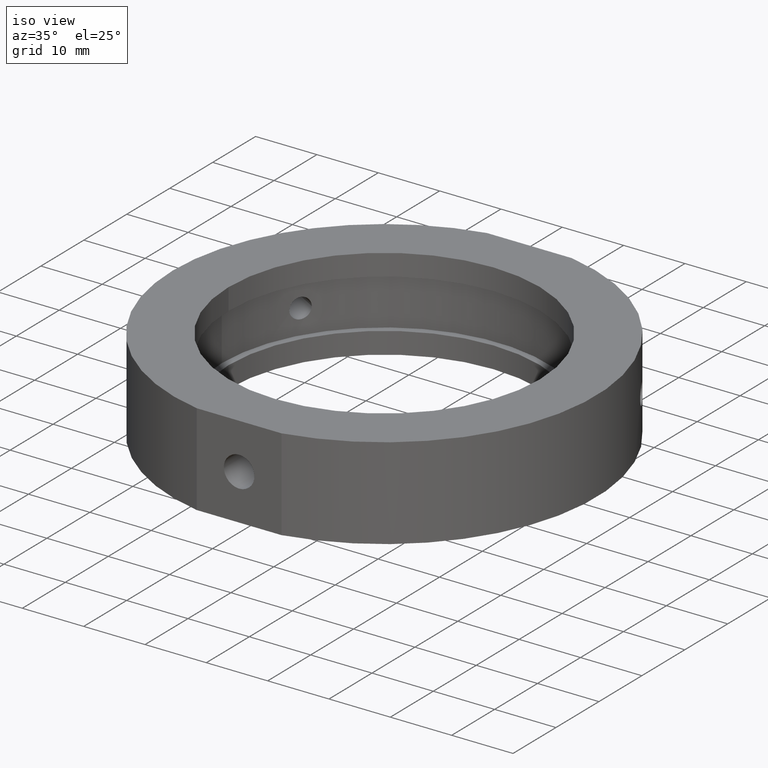
[diagram: clean part render]
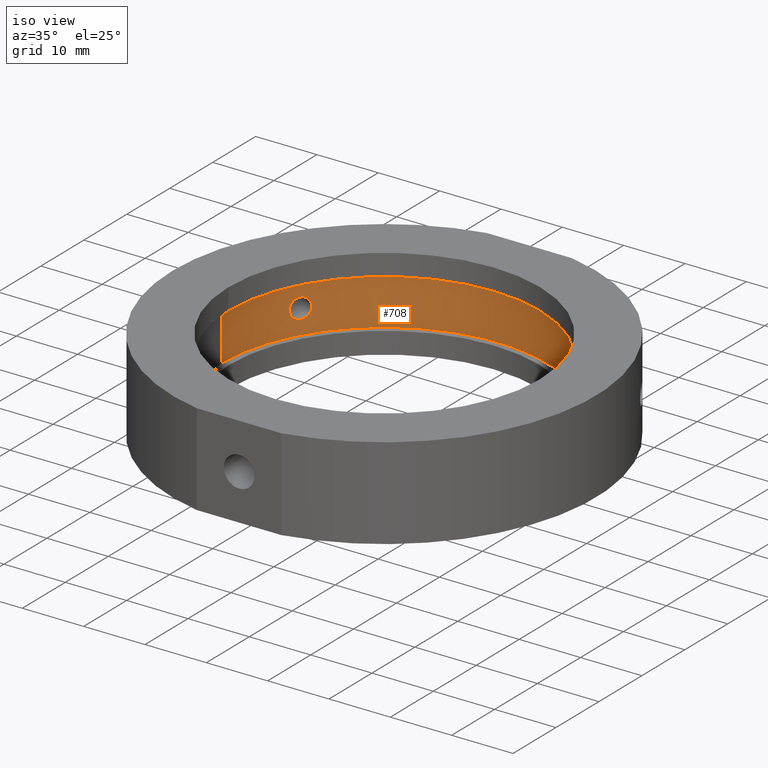
[diagram: same view with one face highlighted and labeled with its STEP entity id]
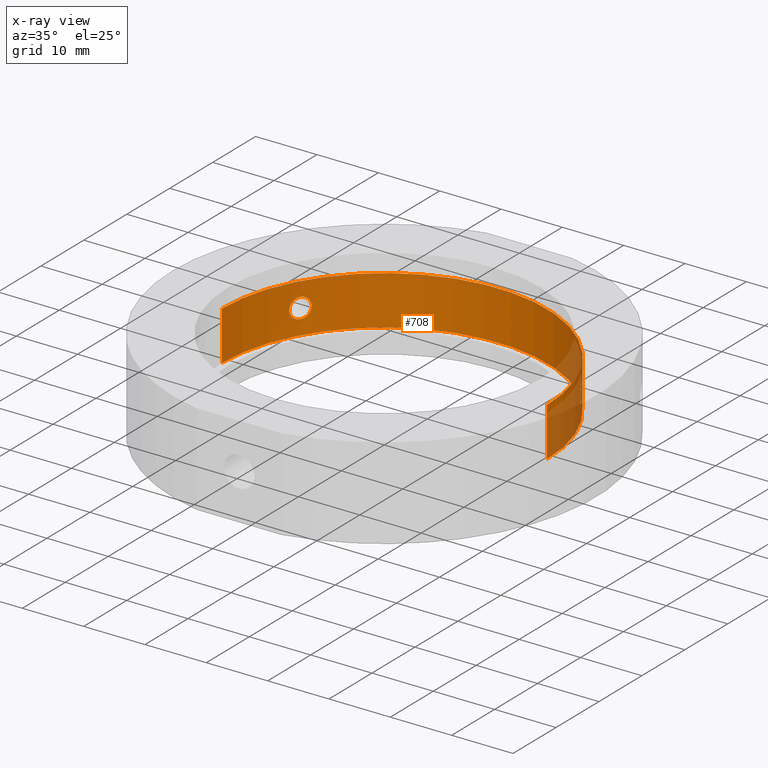
[diagram: x-ray of the same camera — body ghosted, the highlighted face saturated]
A machine part, iso view. The second image highlights one B-rep face of the part: STEP entity #708.
The next image is the same camera in x-ray: the body ghosted, the highlighted face saturated — about 11% of this face is hidden behind the body in this view.
In plain terms, the highlighted cylindrical surface (partial cylindrical patch) has radius 26.5 mm, axis along (-0, -0, -1).
Its self-contained STEP definition (entity closure, byte-faithful):
#12 = DIRECTION ( 'NONE',  ( -1.000000000000000000, 0.0000000000000000000, 0.0000000000000000000 ) ) ;
#21 = CARTESIAN_POINT ( 'NONE',  ( 0.0000000000000000000, 0.0000000000000000000, -31.93906810035839800 ) ) ;
#23 = CARTESIAN_POINT ( 'NONE',  ( 23.21176236929870400, 12.78569701331146800, -1.565225519695946800 ) ) ;
#25 = CARTESIAN_POINT ( 'NONE',  ( 22.26251392646612400, 14.37545578161552500, -1.015413393939631900 ) ) ;
#33 = CARTESIAN_POINT ( 'NONE',  ( -22.10946025722504200, 14.60897716588688900, 0.4285652912980788500 ) ) ;
#34 = CARTESIAN_POINT ( 'NONE',  ( -22.52491568547261000, 13.96016563751797100, -1.431623242074237400 ) ) ;
#45 = CARTESIAN_POINT ( 'NONE',  ( -22.89456247127684900, 13.34544347229920000, -1.649910780175093800 ) ) ;
#47 = CARTESIAN_POINT ( 'NONE',  ( -26.50000000000000000, 0.0000000000000000000, -31.93906810035839800 ) ) ;
#61 = EDGE_CURVE ( 'NONE', #70, #908, #259, .T. ) ;
#68 = ORIENTED_EDGE ( 'NONE', *, *, #76, .F. ) ;
#70 = VERTEX_POINT ( 'NONE', #869 ) ;
#76 = EDGE_CURVE ( 'NONE', #979, #519, #255, .T. ) ;
#86 = B_SPLINE_CURVE_WITH_KNOTS ( 'NONE', 3,
 ( #461, #280, #110, #900, #212, #1074, #644, #198, #386, #209, #824, #909, #293, #915, #724, #204, #997, #374, #119, #989, #471, #382, #465, #553, #564, #993, #33, #637, #735, #738 ),
 .UNSPECIFIED., .F., .F.,
 ( 4, 2, 2, 2, 2, 2, 2, 2, 2, 2, 2, 2, 2, 2, 4 ),
 ( 0.0000000000000000000, 0.0003224937488851672900, 0.0006449874977703344700, 0.0009674812466555015400, 0.001289974995540668500, 0.001934962493311006100, 0.002579949991081343500, 0.002902443739966514100, 0.003224937488851685000, 0.003547431237736855600, 0.003869924986622026500, 0.004192418735507196700, 0.004514912484392367600, 0.004837406233277538600, 0.005159899982162708700 ),
 .UNSPECIFIED. ) ;
#101 = CARTESIAN_POINT ( 'NONE',  ( -22.08014407289325500, 14.65323301255653400, -0.2153518926507562700 ) ) ;
#108 = CARTESIAN_POINT ( 'NONE',  ( 22.38549137300061900, 14.18258050578720600, -1.243615211085979300 ) ) ;
#110 = CARTESIAN_POINT ( 'NONE',  ( -23.72537572262025000, 11.80495608265282400, 0.2162676873792887000 ) ) ;
#117 = CARTESIAN_POINT ( 'NONE',  ( -26.49999999999999600, 0.0000000000000000000, 4.000000000000000000 ) ) ;
#119 = CARTESIAN_POINT ( 'NONE',  ( -22.52495430556246300, 13.96010149608200400, 1.431639342594714500 ) ) ;
#129 = CARTESIAN_POINT ( 'NONE',  ( -23.58076686109186300, 12.09217472161696300, -1.015413393939629900 ) ) ;
#131 = CARTESIAN_POINT ( 'NONE',  ( -23.71067269066712100, 11.83472949812866500, -0.4346623414733967700 ) ) ;
#144 = DIRECTION ( 'NONE',  ( -1.000000000000000000, 0.0000000000000000000, 1.309225264888156400E-016 ) ) ;
#157 = CARTESIAN_POINT ( 'NONE',  ( 22.10926948652947000, 14.60926569218580800, 0.4272032370747647100 ) ) ;
#162 = EDGE_LOOP ( 'NONE', ( #163, #734 ) ) ;
#163 = ORIENTED_EDGE ( 'NONE', *, *, #61, .T. ) ;
#170 = CARTESIAN_POINT ( 'NONE',  ( 23.54624946204570100, 12.15853950655601600, 1.089964078277950100 ) ) ;
#176 = CARTESIAN_POINT ( 'NONE',  ( 22.17236173813508100, 14.51337646864550400, 0.7318373474446662200 ) ) ;
#183 = DIRECTION ( 'NONE',  ( -1.224646799147350500E-016, -0.0000000000000000000, -1.000000000000000000 ) ) ;
#185 = VERTEX_POINT ( 'NONE', #117 ) ;
#194 = CARTESIAN_POINT ( 'NONE',  ( 23.73014407289326000, 11.79534918006792500, 2.020667172429117600E-016 ) ) ;
#198 = CARTESIAN_POINT ( 'NONE',  ( -23.57773229193065100, 12.09727801546404000, 1.005959331714496100 ) ) ;
#204 = CARTESIAN_POINT ( 'NONE',  ( -22.73283772159889100, 13.61907814751506000, 1.597159061045212900 ) ) ;
#209 = CARTESIAN_POINT ( 'NONE',  ( -23.44037845750961000, 12.36211454453652600, 1.319112375348937300 ) ) ;
#212 = CARTESIAN_POINT ( 'NONE',  ( -23.69242317840551900, 11.87100692876143500, 0.5320135984829562600 ) ) ;
#222 = CARTESIAN_POINT ( 'NONE',  ( 26.50000000000000400, 3.245314017740485800E-015, 3.999999999999993300 ) ) ;
#242 = VERTEX_POINT ( 'NONE', #741 ) ;
#243 = CARTESIAN_POINT ( 'NONE',  ( 22.30321049900828000, 14.31162485526390100, 1.090854881088372500 ) ) ;
#254 = CARTESIAN_POINT ( 'NONE',  ( 22.52394914348537100, 13.96284945768986100, 1.442030783619151000 ) ) ;
#255 = LINE ( 'NONE', #537, #682 ) ;
#259 = B_SPLINE_CURVE_WITH_KNOTS ( 'NONE', 3,
 ( #773, #419, #326, #157, #948, #176, #506, #606, #243, #681, #254, #609, #336, #687, #260, #775, #866, #950, #1033, #694, #509, #170, #434, #1124, #601, #690, #962, #955, #431, #516 ),
 .UNSPECIFIED., .F., .F.,
 ( 4, 2, 2, 2, 2, 2, 2, 2, 2, 2, 2, 2, 2, 2, 4 ),
 ( 0.0000000000000000000, 0.0003224937488851696700, 0.0006449874977703393500, 0.0009674812466555089100, 0.001289974995540678700, 0.001934962493311014600, 0.002579949991081350500, 0.002902443739966520600, 0.003224937488851690700, 0.003547431237736861200, 0.003869924986622031300, 0.004192418735507201000, 0.004514912484392371100, 0.004837406233277542100, 0.005159899982162712200 ),
 .UNSPECIFIED. ) ;
#260 = CARTESIAN_POINT ( 'NONE',  ( 23.05729099181074200, 13.06225602963114300, 1.639302869596786600 ) ) ;
#264 = B_SPLINE_CURVE_WITH_KNOTS ( 'NONE', 3,
 ( #1064, #101, #626, #371, #803, #980, #457, #34, #826, #1002, #748, #916, #45, #384, #640, #565, #636, #552, #990, #129, #733, #131, #827, #911 ),
 .UNSPECIFIED., .F., .F.,
 ( 4, 2, 2, 2, 2, 2, 2, 2, 2, 2, 2, 4 ),
 ( 0.005159899982162708700, 0.005804739698417736600, 0.006449579414672765300, 0.006771999272800279700, 0.007094419130927794000, 0.007416838989055309300, 0.007739258847182824500, 0.008384098563437861900, 0.008706518421565376300, 0.009028938279692890600, 0.009673777995947924500, 0.01031861771220295800 ),
 .UNSPECIFIED. ) ;
#270 = CARTESIAN_POINT ( 'NONE',  ( 23.43661263444520800, 12.36863935473707500, -1.311712561979962600 ) ) ;
#273 = ORIENTED_EDGE ( 'NONE', *, *, #290, .T. ) ;
#275 = EDGE_CURVE ( 'NONE', #600, #1097, #86, .T. ) ;
#279 = CARTESIAN_POINT ( 'NONE',  ( 22.52593787060042300, 13.95851602396180300, -1.432732415614109500 ) ) ;
#280 = CARTESIAN_POINT ( 'NONE',  ( -23.73014407289325700, 11.79534918006792000, 0.1090477185014672700 ) ) ;
#283 = CARTESIAN_POINT ( 'NONE',  ( 23.35231592586533700, 12.52706638296309900, -1.431623242074238100 ) ) ;
#290 = EDGE_CURVE ( 'NONE', #185, #242, #919, .T. ) ;
#293 = CARTESIAN_POINT ( 'NONE',  ( -23.05761192653949400, 13.06303504127114600, 1.649922903012474500 ) ) ;
#306 = AXIS2_PLACEMENT_3D ( 'NONE', #21, #727, #12 ) ;
#326 = CARTESIAN_POINT ( 'NONE',  ( 22.08607971944695700, 14.64430004879351600, 0.2162676873792886400 ) ) ;
#336 = CARTESIAN_POINT ( 'NONE',  ( 22.84172615953674400, 13.43696015835091000, 1.649922903012474700 ) ) ;
#338 = CARTESIAN_POINT ( 'NONE',  ( -22.08014407289325500, 14.65323301255653400, 2.020667172426159300E-016 ) ) ;
#361 = CARTESIAN_POINT ( 'NONE',  ( 22.84148677517503100, 13.43740640129747500, -1.650176797725124700 ) ) ;
#365 = FACE_OUTER_BOUND ( 'NONE', #532, .T. ) ;
#371 = CARTESIAN_POINT ( 'NONE',  ( -22.19456611349418300, 14.47957222794232200, -0.8295684704815752300 ) ) ;
#374 = CARTESIAN_POINT ( 'NONE',  ( -22.57574664374015000, 13.87788347454240100, 1.483316624237932300 ) ) ;
#382 = CARTESIAN_POINT ( 'NONE',  ( -22.30272881661692700, 14.31238044469944400, 1.089964078277949800 ) ) ;
#384 = CARTESIAN_POINT ( 'NONE',  ( -23.05787869208662100, 13.06260460685934900, -1.650176797725123800 ) ) ;
#386 = CARTESIAN_POINT ( 'NONE',  ( -23.54583594359535300, 12.15933445046125700, 1.090854881088373100 ) ) ;
#393 = VECTOR ( 'NONE', #1006, 1000.000000000000000 ) ;
#419 = CARTESIAN_POINT ( 'NONE',  ( 22.08014407289325800, 14.65323301255654300, 0.1090477185014672300 ) ) ;
#421 = DIRECTION ( 'NONE',  ( -1.224646799147350500E-016, -0.0000000000000000000, -1.000000000000000000 ) ) ;
#430 = B_SPLINE_CURVE_WITH_KNOTS ( 'NONE', 3,
 ( #194, #543, #714, #723, #899, #984, #270, #283, #988, #23, #631, #975, #895, #361, #885, #460, #279, #1073, #108, #25, #623, #538, #634, #528 ),
 .UNSPECIFIED., .F., .F.,
 ( 4, 2, 2, 2, 2, 2, 2, 2, 2, 2, 2, 4 ),
 ( 0.005159899982162712200, 0.005804739698417739200, 0.006449579414672765300, 0.006771999272800279700, 0.007094419130927792300, 0.007416838989055305800, 0.007739258847182819300, 0.008384098563437851500, 0.008706518421565371000, 0.009028938279692890600, 0.009673777995947928000, 0.01031861771220296500 ),
 .UNSPECIFIED. ) ;
#431 = CARTESIAN_POINT ( 'NONE',  ( 23.73014407289327100, 11.79534918006792800, 0.1077006230227173600 ) ) ;
#434 = CARTESIAN_POINT ( 'NONE',  ( 23.57752229440281500, 12.09768662376183500, 1.006520465042877000 ) ) ;
#457 = CARTESIAN_POINT ( 'NONE',  ( -22.42986220867274500, 14.11238224271656500, -1.311712561979961900 ) ) ;
#460 = CARTESIAN_POINT ( 'NONE',  ( 22.57578034668965500, 13.87782951273222500, -1.483357019583647200 ) ) ;
#461 = CARTESIAN_POINT ( 'NONE',  ( -23.73014407289325700, 11.79534918006791600, 0.0000000000000000000 ) ) ;
#465 = CARTESIAN_POINT ( 'NONE',  ( -22.26566509040220200, 14.36988995336609200, 1.006520465042876100 ) ) ;
#471 = CARTESIAN_POINT ( 'NONE',  ( -22.38564801588610500, 14.18233794443724900, 1.243978991921612700 ) ) ;
#490 = ORIENTED_EDGE ( 'NONE', *, *, #1115, .T. ) ;
#506 = CARTESIAN_POINT ( 'NONE',  ( 22.20015708522388200, 14.47088873582970900, 0.8266064267799886300 ) ) ;
#509 = CARTESIAN_POINT ( 'NONE',  ( 23.47508895288157800, 12.29537088971569000, 1.243978991921613100 ) ) ;
#516 = CARTESIAN_POINT ( 'NONE',  ( 23.73014407289326000, 11.79534918006792500, 2.020667172429117600E-016 ) ) ;
#519 = VERTEX_POINT ( 'NONE', #685 ) ;
#528 = CARTESIAN_POINT ( 'NONE',  ( 22.08014407289325500, 14.65323301255654100, 0.0000000000000000000 ) ) ;
#532 = EDGE_LOOP ( 'NONE', ( #68, #798, #273, #490 ) ) ;
#537 = CARTESIAN_POINT ( 'NONE',  ( 26.50000000000000000, 3.245314017740485800E-015, -31.93906810035839800 ) ) ;
#538 = CARTESIAN_POINT ( 'NONE',  ( 22.10451273762991100, 14.61668014187153600, -0.4346623414733955000 ) ) ;
#543 = CARTESIAN_POINT ( 'NONE',  ( 23.73014407289326400, 11.79534918006792500, -0.2153518926507567400 ) ) ;
#545 = CYLINDRICAL_SURFACE ( 'NONE', #306, 26.50000000000000000 ) ;
#549 = AXIS2_PLACEMENT_3D ( 'NONE', #576, #1094, #144 ) ;
#552 = CARTESIAN_POINT ( 'NONE',  ( -23.43568214549747000, 12.37040213237063400, -1.313227890595687800 ) ) ;
#553 = CARTESIAN_POINT ( 'NONE',  ( -22.20055560575438800, 14.47027677639978200, 0.8278233031486624800 ) ) ;
#564 = CARTESIAN_POINT ( 'NONE',  ( -22.17223436912429000, 14.51357100487430300, 0.7313737833723531500 ) ) ;
#565 = CARTESIAN_POINT ( 'NONE',  ( -23.30644308076022100, 12.61228453412481800, -1.483357019583648700 ) ) ;
#576 = CARTESIAN_POINT ( 'NONE',  ( 4.401266471344255700E-015, 0.0000000000000000000, 3.999999999999996400 ) ) ;
#600 = VERTEX_POINT ( 'NONE', #784 ) ;
#601 = CARTESIAN_POINT ( 'NONE',  ( 23.65523837441242000, 11.94493271988714900, 0.7313737833723530400 ) ) ;
#606 = CARTESIAN_POINT ( 'NONE',  ( 22.26541622400005600, 14.37027612070884100, 1.005959331714496800 ) ) ;
#609 = CARTESIAN_POINT ( 'NONE',  ( 22.73071288378096000, 13.62366110087664100, 1.606592446830113200 ) ) ;
#618 = ORIENTED_EDGE ( 'NONE', *, *, #770, .T. ) ;
#623 = CARTESIAN_POINT ( 'NONE',  ( 22.19519541159434100, 14.47860913136915800, -0.8315601166443693500 ) ) ;
#626 = CARTESIAN_POINT ( 'NONE',  ( -22.10417758519854900, 14.61718543880691900, -0.4324246359971246600 ) ) ;
#631 = CARTESIAN_POINT ( 'NONE',  ( 23.16098205381152300, 12.87750101601670100, -1.597080664446323400 ) ) ;
#634 = CARTESIAN_POINT ( 'NONE',  ( 22.08014407289324800, 14.65323301255653200, -0.2180454663069547900 ) ) ;
#636 = CARTESIAN_POINT ( 'NONE',  ( -23.35139841118316900, 12.52877642802923200, -1.432732415614109900 ) ) ;
#637 = CARTESIAN_POINT ( 'NONE',  ( -22.08612916099174900, 14.64422566690395300, 0.2170867892633903700 ) ) ;
#640 = CARTESIAN_POINT ( 'NONE',  ( -23.16259475326376800, 12.87572309743569600, -1.607467900283003200 ) ) ;
#644 = CARTESIAN_POINT ( 'NONE',  ( -23.63223580317842800, 11.99045563589434200, 0.8266064267799880800 ) ) ;
#670 = EDGE_LOOP ( 'NONE', ( #821, #618 ) ) ;
#677 = DIRECTION ( 'NONE',  ( -1.000000000000000000, 0.0000000000000000000, 1.309225264888156400E-016 ) ) ;
#681 = CARTESIAN_POINT ( 'NONE',  ( 22.42609446881639500, 14.11890594625677600, 1.319112375348936400 ) ) ;
#682 = VECTOR ( 'NONE', #183, 1000.000000000000000 ) ;
#683 = CARTESIAN_POINT ( 'NONE',  ( 3.421549032026375300E-015, 0.0000000000000000000, -4.000000000000000000 ) ) ;
#685 = CARTESIAN_POINT ( 'NONE',  ( 26.50000000000000400, 3.245314017740485800E-015, -4.000000000000003600 ) ) ;
#687 = CARTESIAN_POINT ( 'NONE',  ( 23.00320417217718500, 13.15728641757959100, 1.650038390237894600 ) ) ;
#690 = CARTESIAN_POINT ( 'NONE',  ( 23.69251290695588000, 11.87082778860151300, 0.5314342899608186500 ) ) ;
#693 = EDGE_CURVE ( 'NONE', #908, #70, #430, .T. ) ;
#694 = CARTESIAN_POINT ( 'NONE',  ( 23.43631104625874800, 12.36920873749000700, 1.312176871509154400 ) ) ;
#708 = ADVANCED_FACE ( 'NONE', ( #365, #780, #830 ), #545, .F. ) ;
#714 = CARTESIAN_POINT ( 'NONE',  ( 23.71094271443394800, 11.83418659914128100, -0.4324246359971241600 ) ) ;
#723 = CARTESIAN_POINT ( 'NONE',  ( 23.63696044207667400, 11.98127196628828800, -0.8295684704815745600 ) ) ;
#724 = CARTESIAN_POINT ( 'NONE',  ( -22.84089104830226100, 13.43707172654283400, 1.639302869596786200 ) ) ;
#727 = DIRECTION ( 'NONE',  ( -1.224646799147350500E-016, -0.0000000000000000000, -1.000000000000000000 ) ) ;
#733 = CARTESIAN_POINT ( 'NONE',  ( -23.63644102502808400, 11.98229850271615000, -0.8315601166443710200 ) ) ;
#734 = ORIENTED_EDGE ( 'NONE', *, *, #693, .T. ) ;
#735 = CARTESIAN_POINT ( 'NONE',  ( -22.08014407289325100, 14.65323301255653200, 0.1077006230227171000 ) ) ;
#738 = CARTESIAN_POINT ( 'NONE',  ( -22.08014407289325500, 14.65323301255653400, 2.020667172426159300E-016 ) ) ;
#741 = CARTESIAN_POINT ( 'NONE',  ( -26.49999999999999600, 0.0000000000000000000, -3.999999999999996400 ) ) ;
#748 = CARTESIAN_POINT ( 'NONE',  ( -22.73273404403600800, 13.61924832718812300, -1.597080664446323400 ) ) ;
#770 = EDGE_CURVE ( 'NONE', #1097, #600, #264, .T. ) ;
#773 = CARTESIAN_POINT ( 'NONE',  ( 22.08014407289325500, 14.65323301255654100, 0.0000000000000000000 ) ) ;
#775 = CARTESIAN_POINT ( 'NONE',  ( 23.16088651267288900, 12.87767589325649100, 1.597159061045213100 ) ) ;
#780 = FACE_BOUND ( 'NONE', #670, .T. ) ;
#784 = CARTESIAN_POINT ( 'NONE',  ( -23.73014407289325700, 11.79534918006791600, 0.0000000000000000000 ) ) ;
#798 = ORIENTED_EDGE ( 'NONE', *, *, #999, .F. ) ;
#803 = CARTESIAN_POINT ( 'NONE',  ( -22.26181086660923800, 14.37654084257254000, -1.013694917575980400 ) ) ;
#821 = ORIENTED_EDGE ( 'NONE', *, *, #275, .T. ) ;
#824 = CARTESIAN_POINT ( 'NONE',  ( -23.35415691131974100, 12.52488742296236500, 1.442030783619149900 ) ) ;
#826 = CARTESIAN_POINT ( 'NONE',  ( -22.57471767585989800, 13.87955627029236500, -1.482342151618417900 ) ) ;
#827 = CARTESIAN_POINT ( 'NONE',  ( -23.73014407289324300, 11.79534918006791200, -0.2180454663069540700 ) ) ;
#830 = FACE_BOUND ( 'NONE', #162, .T. ) ;
#866 = CARTESIAN_POINT ( 'NONE',  ( 23.21069027907539700, 12.78764415457973200, 1.565986155163598300 ) ) ;
#869 = CARTESIAN_POINT ( 'NONE',  ( 22.08014407289325500, 14.65323301255654100, 0.0000000000000000000 ) ) ;
#885 = CARTESIAN_POINT ( 'NONE',  ( 22.73200067110513000, 13.62153392517294900, -1.607467900283002600 ) ) ;
#888 = CIRCLE ( 'NONE', #898, 26.50000000000000000 ) ;
#895 = CARTESIAN_POINT ( 'NONE',  ( 23.00477430741860700, 13.15455097250620800, -1.649910780175093600 ) ) ;
#898 = AXIS2_PLACEMENT_3D ( 'NONE', #683, #421, #677 ) ;
#899 = CARTESIAN_POINT ( 'NONE',  ( 23.58135502151686300, 12.09102332344202000, -1.013694917575979300 ) ) ;
#900 = CARTESIAN_POINT ( 'NONE',  ( -23.70662996333397700, 11.84255618835796800, 0.4272032370747646000 ) ) ;
#908 = VERTEX_POINT ( 'NONE', #1088 ) ;
#909 = CARTESIAN_POINT ( 'NONE',  ( -23.16379304779939800, 12.87354425304644100, 1.606592446830113400 ) ) ;
#911 = CARTESIAN_POINT ( 'NONE',  ( -23.73014407289325700, 11.79534918006791600, 0.0000000000000000000 ) ) ;
#915 = CARTESIAN_POINT ( 'NONE',  ( -22.89614636858032500, 13.34271597275604500, 1.650038390237894300 ) ) ;
#916 = CARTESIAN_POINT ( 'NONE',  ( -22.84041267844938300, 13.43788193104176500, -1.639154046853641400 ) ) ;
#919 = LINE ( 'NONE', #47, #393 ) ;
#948 = CARTESIAN_POINT ( 'NONE',  ( 22.12680515801111300, 14.58273688532992700, 0.5320135984829564800 ) ) ;
#950 = CARTESIAN_POINT ( 'NONE',  ( 23.30647296158393200, 12.61222836560926900, 1.483316624237931400 ) ) ;
#955 = CARTESIAN_POINT ( 'NONE',  ( 23.72533602678670700, 11.80503609123139700, 0.2170867892633904200 ) ) ;
#962 = CARTESIAN_POINT ( 'NONE',  ( 23.70647547757726100, 11.84286566377610600, 0.4285652912980791300 ) ) ;
#975 = CARTESIAN_POINT ( 'NONE',  ( 23.05775346456263000, 13.06143664693667700, -1.639154046853642100 ) ) ;
#979 = VERTEX_POINT ( 'NONE', #222 ) ;
#980 = CARTESIAN_POINT ( 'NONE',  ( -22.38452069566643100, 14.18411155624456700, -1.242017584850811300 ) ) ;
#984 = CARTESIAN_POINT ( 'NONE',  ( 23.47606128565331900, 12.29350779586358800, -1.242017584850810600 ) ) ;
#988 = CARTESIAN_POINT ( 'NONE',  ( 23.30740716125862000, 12.61050085541031000, -1.482342151618419000 ) ) ;
#989 = CARTESIAN_POINT ( 'NONE',  ( -22.43020451450802700, 14.11183636830913800, 1.312176871509153700 ) ) ;
#990 = CARTESIAN_POINT ( 'NONE',  ( -23.47522069572986000, 12.29511395232255000, -1.243615211085979300 ) ) ;
#993 = CARTESIAN_POINT ( 'NONE',  ( -22.12669488235696100, 14.58290416261393900, 0.5314342899608186500 ) ) ;
#997 = CARTESIAN_POINT ( 'NONE',  ( -22.67976983195919200, 13.70722534376216300, 1.565986155163598500 ) ) ;
#999 = EDGE_CURVE ( 'NONE', #185, #979, #1019, .T. ) ;
#1002 = CARTESIAN_POINT ( 'NONE',  ( -22.67861960326778000, 13.70912737176483500, -1.565225519695945900 ) ) ;
#1006 = DIRECTION ( 'NONE',  ( -1.224646799147350500E-016, -0.0000000000000000000, -1.000000000000000000 ) ) ;
#1019 = CIRCLE ( 'NONE', #549, 26.50000000000000000 ) ;
#1033 = CARTESIAN_POINT ( 'NONE',  ( 23.35227968779728500, 12.52713189965999000, 1.431639342594715400 ) ) ;
#1064 = CARTESIAN_POINT ( 'NONE',  ( -22.08014407289325500, 14.65323301255653400, 2.020667172426159300E-016 ) ) ;
#1073 = CARTESIAN_POINT ( 'NONE',  ( 22.43092357441075500, 14.11069502683310300, -1.313227890595687800 ) ) ;
#1074 = CARTESIAN_POINT ( 'NONE',  ( -23.65513358560171400, 11.94514029280054000, 0.7318373474446656600 ) ) ;
#1088 = CARTESIAN_POINT ( 'NONE',  ( 23.73014407289326000, 11.79534918006792500, 2.020667172429117600E-016 ) ) ;
#1094 = DIRECTION ( 'NONE',  ( -1.224646799147350500E-016, -0.0000000000000000000, -1.000000000000000000 ) ) ;
#1097 = VERTEX_POINT ( 'NONE', #338 ) ;
#1115 = EDGE_CURVE ( 'NONE', #242, #519, #888, .T. ) ;
#1124 = CARTESIAN_POINT ( 'NONE',  ( 23.63190509103129200, 11.99110674451266900, 0.8278233031486634800 ) ) ;